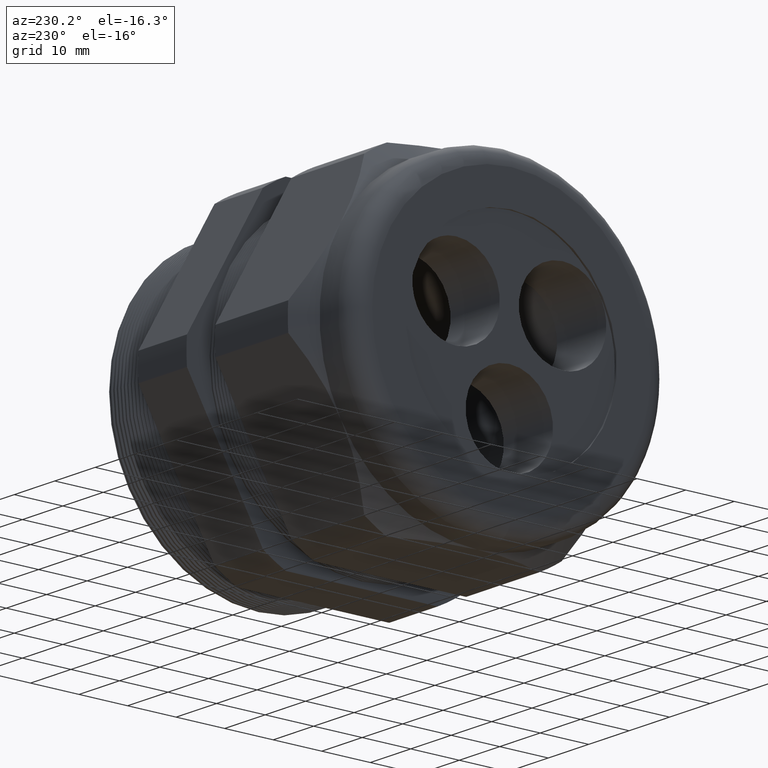
[diagram: clean part render]
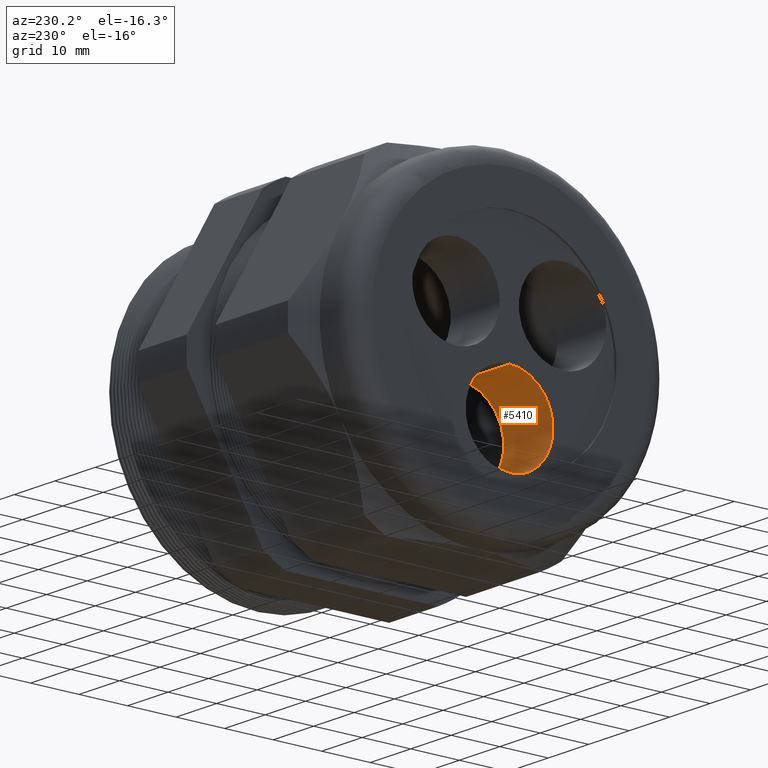
[diagram: same view with one face highlighted and labeled with its STEP entity id]
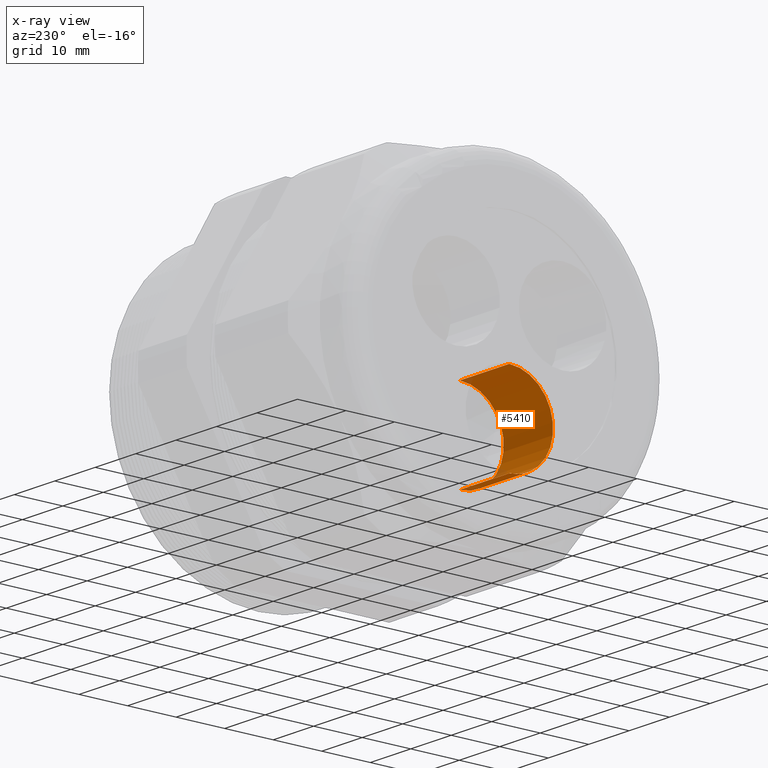
[diagram: x-ray of the same camera — body ghosted, the highlighted face saturated]
A machine part, auxiliary view. The second image highlights one B-rep face of the part: STEP entity #5410.
The next image is the same camera in x-ray: the body ghosted, the highlighted face saturated — about 3% of this face is hidden behind the body in this view.
In plain terms, the highlighted cylindrical surface (partial cylindrical patch) has radius 9.017 mm, axis along (-1, 0, 0).
Its self-contained STEP definition (entity closure, byte-faithful):
#1795 = CARTESIAN_POINT ( 'NONE',  ( -2.219999999999999800, 4.347496136973103500E-017, -0.8535799999999998900 ) ) ;
#1843 = CARTESIAN_POINT ( 'NONE',  ( -2.219999999999999800, 0.0000000000000000000, -0.1435799999999999600 ) ) ;
#1844 = DIRECTION ( 'NONE',  ( -1.000000000000000000, 0.0000000000000000000, 0.0000000000000000000 ) ) ;
#1845 = VECTOR ( 'NONE', #1844, 39.37007874015748100 ) ;
#1846 = CARTESIAN_POINT ( 'NONE',  ( 0.2400000000000001900, 0.0000000000000000000, -0.1435799999999999600 ) ) ;
#1847 = LINE ( 'NONE', #1846, #1845 ) ;
#1871 = DIRECTION ( 'NONE',  ( 0.0000000000000000000, 0.0000000000000000000, 1.000000000000000000 ) ) ;
#1872 = DIRECTION ( 'NONE',  ( -1.000000000000000000, 0.0000000000000000000, 0.0000000000000000000 ) ) ;
#1873 = CARTESIAN_POINT ( 'NONE',  ( -2.219999999999999800, 0.0000000000000000000, -0.4985799999999999100 ) ) ;
#1874 = AXIS2_PLACEMENT_3D ( 'NONE', #1873, #1872, #1871 ) ;
#1875 = CIRCLE ( 'NONE', #1874, 0.3549999999999999800 ) ;
#1878 = CARTESIAN_POINT ( 'NONE',  ( -1.739999999999999500, 0.0000000000000000000, -0.1435799999999999600 ) ) ;
#1914 = DIRECTION ( 'NONE',  ( 0.0000000000000000000, 0.0000000000000000000, 1.000000000000000000 ) ) ;
#1915 = DIRECTION ( 'NONE',  ( -1.000000000000000000, 0.0000000000000000000, 0.0000000000000000000 ) ) ;
#1916 = CARTESIAN_POINT ( 'NONE',  ( -1.739999999999999500, 0.0000000000000000000, -0.4985799999999999100 ) ) ;
#1917 = AXIS2_PLACEMENT_3D ( 'NONE', #1916, #1915, #1914 ) ;
#1918 = CIRCLE ( 'NONE', #1917, 0.3549999999999999800 ) ;
#1919 = DIRECTION ( 'NONE',  ( -1.000000000000000000, 0.0000000000000000000, 0.0000000000000000000 ) ) ;
#1920 = VECTOR ( 'NONE', #1919, 39.37007874015748100 ) ;
#1921 = CARTESIAN_POINT ( 'NONE',  ( 0.2400000000000001900, 4.347496136973103500E-017, -0.8535799999999998900 ) ) ;
#1922 = LINE ( 'NONE', #1921, #1920 ) ;
#3557 = CARTESIAN_POINT ( 'NONE',  ( -1.739999999999999500, 4.347496136973103500E-017, -0.8535799999999998900 ) ) ;
#3668 = DIRECTION ( 'NONE',  ( 0.0000000000000000000, 0.0000000000000000000, 1.000000000000000000 ) ) ;
#3669 = DIRECTION ( 'NONE',  ( -1.000000000000000000, 0.0000000000000000000, 0.0000000000000000000 ) ) ;
#3670 = AXIS2_PLACEMENT_3D ( 'NONE', #3672, #3669, #3668 ) ;
#3671 = CYLINDRICAL_SURFACE ( 'NONE', #3670, 0.3549999999999999800 ) ;
#3672 = CARTESIAN_POINT ( 'NONE',  ( 0.2400000000000001900, 0.0000000000000000000, -0.4985799999999999100 ) ) ;
#3673 = FACE_OUTER_BOUND ( 'NONE', #5409, .T. ) ;
#4380 = VERTEX_POINT ( 'NONE', #1795 ) ;
#4384 = ORIENTED_EDGE ( 'NONE', *, *, #4411, .T. ) ;
#4386 = EDGE_CURVE ( 'NONE', #4399, #4387, #1847, .T. ) ;
#4387 = VERTEX_POINT ( 'NONE', #1843 ) ;
#4388 = ORIENTED_EDGE ( 'NONE', *, *, #4386, .F. ) ;
#4399 = VERTEX_POINT ( 'NONE', #1878 ) ;
#4404 = EDGE_CURVE ( 'NONE', #4380, #4387, #1875, .T. ) ;
#4407 = ORIENTED_EDGE ( 'NONE', *, *, #4404, .T. ) ;
#4411 = EDGE_CURVE ( 'NONE', #5365, #4380, #1922, .T. ) ;
#4412 = EDGE_CURVE ( 'NONE', #5365, #4399, #1918, .T. ) ;
#5365 = VERTEX_POINT ( 'NONE', #3557 ) ;
#5395 = ORIENTED_EDGE ( 'NONE', *, *, #4412, .F. ) ;
#5409 = EDGE_LOOP ( 'NONE', ( #5395, #4384, #4407, #4388 ) ) ;
#5410 = ADVANCED_FACE ( 'NONE', ( #3673 ), #3671, .F. ) ;